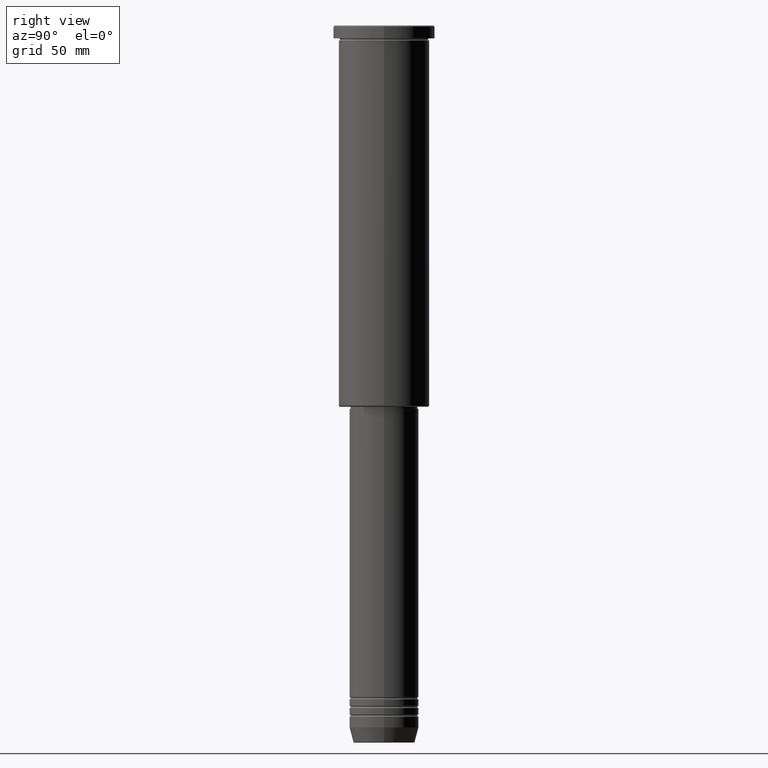
[diagram: clean part render]
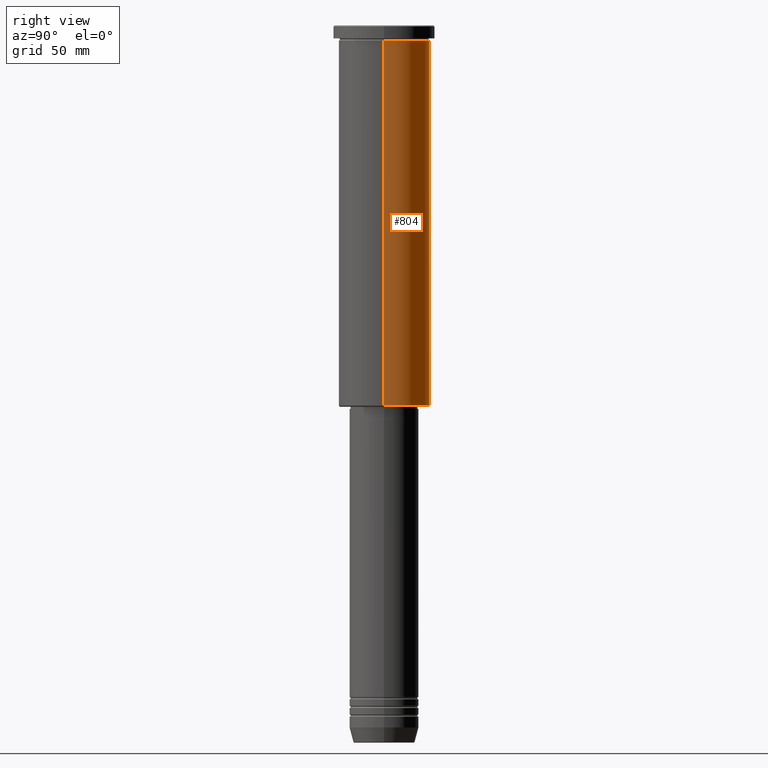
[diagram: same view with one face highlighted and labeled with its STEP entity id]
A machine part, right view. The second image highlights one B-rep face of the part: STEP entity #804.
In plain terms, the highlighted cylindrical surface (partial cylindrical patch) has radius 21 mm, axis along (-0, -0, 1).
Its self-contained STEP definition (entity closure, byte-faithful):
#7 = CYLINDRICAL_SURFACE ( 'NONE', #526, 21.00000000000000000 ) ;
#12 = CARTESIAN_POINT ( 'NONE',  ( 0.000000000000000000, 0.000000000000000000, 0.000000000000000000 ) ) ;
#86 = CARTESIAN_POINT ( 'NONE',  ( 21.00000000000000000, 0.000000000000000000, -175.4999999999999432 ) ) ;
#143 = CARTESIAN_POINT ( 'NONE',  ( -21.00000000000000000, 2.571758278209441661E-15, 0.000000000000000000 ) ) ;
#191 = DIRECTION ( 'NONE',  ( 1.000000000000000000, 0.000000000000000000, 0.000000000000000000 ) ) ;
#198 = DIRECTION ( 'NONE',  ( -0.000000000000000000, -0.000000000000000000, 1.000000000000000000 ) ) ;
#210 = CIRCLE ( 'NONE', #503, 21.00000000000000000 ) ;
#239 = ORIENTED_EDGE ( 'NONE', *, *, #516, .T. ) ;
#317 = VERTEX_POINT ( 'NONE', #1157 ) ;
#344 = DIRECTION ( 'NONE',  ( -0.000000000000000000, -0.000000000000000000, 1.000000000000000000 ) ) ;
#389 = EDGE_CURVE ( 'NONE', #317, #990, #210, .T. ) ;
#398 = CARTESIAN_POINT ( 'NONE',  ( 0.000000000000000000, 0.000000000000000000, -175.4999999999999432 ) ) ;
#404 = EDGE_CURVE ( 'NONE', #940, #317, #993, .T. ) ;
#413 = AXIS2_PLACEMENT_3D ( 'NONE', #398, #1013, #665 ) ;
#455 = DIRECTION ( 'NONE',  ( -0.000000000000000000, -0.000000000000000000, 1.000000000000000000 ) ) ;
#503 = AXIS2_PLACEMENT_3D ( 'NONE', #652, #198, #846 ) ;
#516 = EDGE_CURVE ( 'NONE', #789, #990, #1066, .T. ) ;
#526 = AXIS2_PLACEMENT_3D ( 'NONE', #12, #852, #191 ) ;
#612 = ORIENTED_EDGE ( 'NONE', *, *, #404, .F. ) ;
#652 = CARTESIAN_POINT ( 'NONE',  ( 0.000000000000000000, 0.000000000000000000, -6.999999999999993783 ) ) ;
#665 = DIRECTION ( 'NONE',  ( -1.000000000000000000, 0.000000000000000000, 0.000000000000000000 ) ) ;
#669 = ORIENTED_EDGE ( 'NONE', *, *, #1012, .T. ) ;
#676 = CIRCLE ( 'NONE', #413, 21.00000000000000000 ) ;
#706 = ORIENTED_EDGE ( 'NONE', *, *, #389, .F. ) ;
#745 = CARTESIAN_POINT ( 'NONE',  ( 21.00000000000000000, 0.000000000000000000, 0.000000000000000000 ) ) ;
#789 = VERTEX_POINT ( 'NONE', #1047 ) ;
#804 = ADVANCED_FACE ( 'NONE', ( #848 ), #7, .T. ) ;
#818 = CARTESIAN_POINT ( 'NONE',  ( -21.00000000000000000, 2.571758278209441661E-15, -6.999999999999993783 ) ) ;
#846 = DIRECTION ( 'NONE',  ( 1.000000000000000000, 0.000000000000000000, 0.000000000000000000 ) ) ;
#848 = FACE_OUTER_BOUND ( 'NONE', #1135, .T. ) ;
#852 = DIRECTION ( 'NONE',  ( -0.000000000000000000, -0.000000000000000000, 1.000000000000000000 ) ) ;
#940 = VERTEX_POINT ( 'NONE', #86 ) ;
#990 = VERTEX_POINT ( 'NONE', #818 ) ;
#993 = LINE ( 'NONE', #745, #1147 ) ;
#1012 = EDGE_CURVE ( 'NONE', #940, #789, #676, .T. ) ;
#1013 = DIRECTION ( 'NONE',  ( -0.000000000000000000, -0.000000000000000000, 1.000000000000000000 ) ) ;
#1047 = CARTESIAN_POINT ( 'NONE',  ( -21.00000000000000000, 2.571758278209441661E-15, -175.4999999999999432 ) ) ;
#1066 = LINE ( 'NONE', #143, #1113 ) ;
#1113 = VECTOR ( 'NONE', #344, 1000.000000000000000 ) ;
#1135 = EDGE_LOOP ( 'NONE', ( #669, #239, #706, #612 ) ) ;
#1147 = VECTOR ( 'NONE', #455, 1000.000000000000000 ) ;
#1157 = CARTESIAN_POINT ( 'NONE',  ( 21.00000000000000000, 0.000000000000000000, -6.999999999999993783 ) ) ;